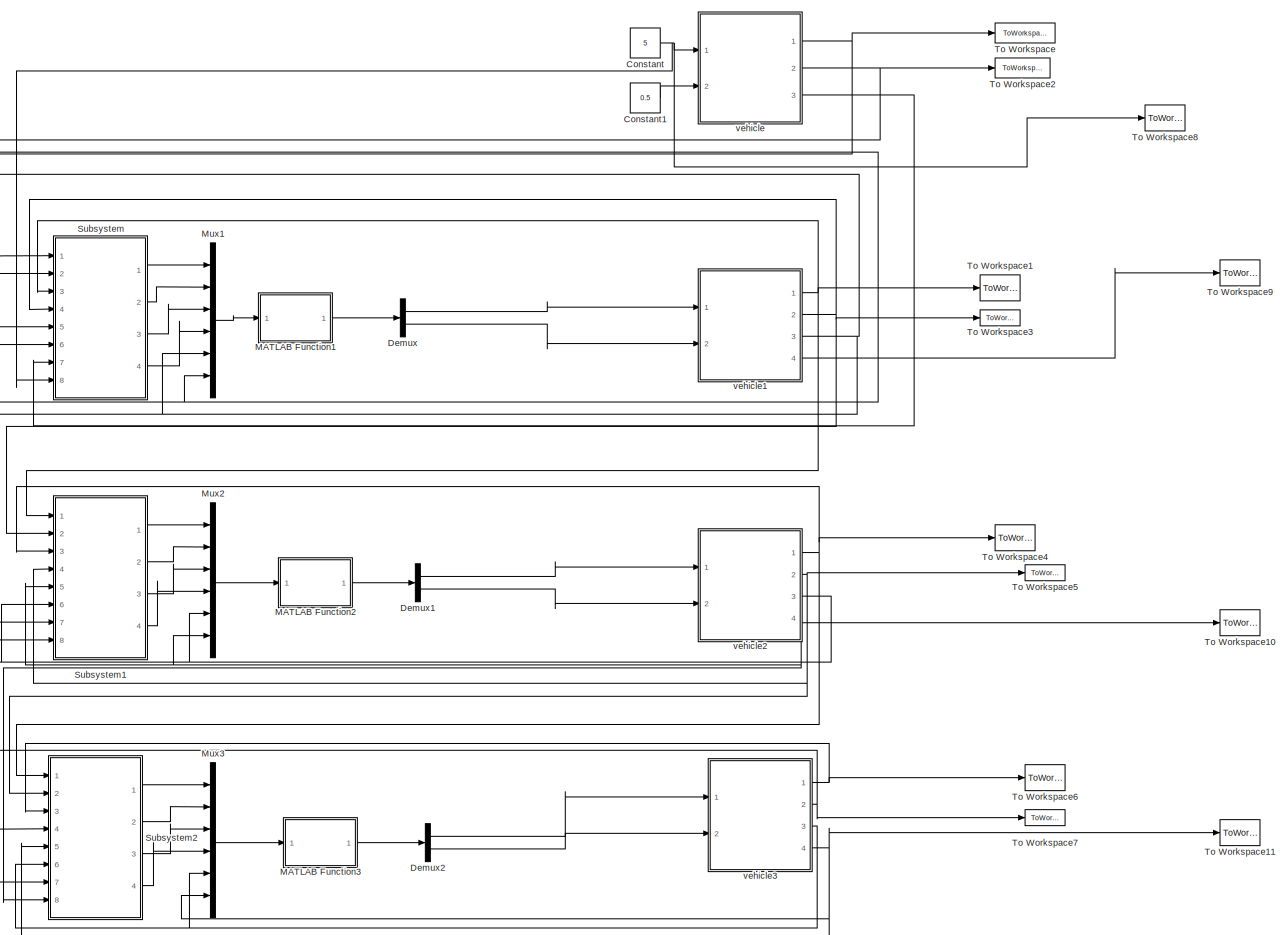
[diagram: root canvas - part 1/1, most of the canvas]
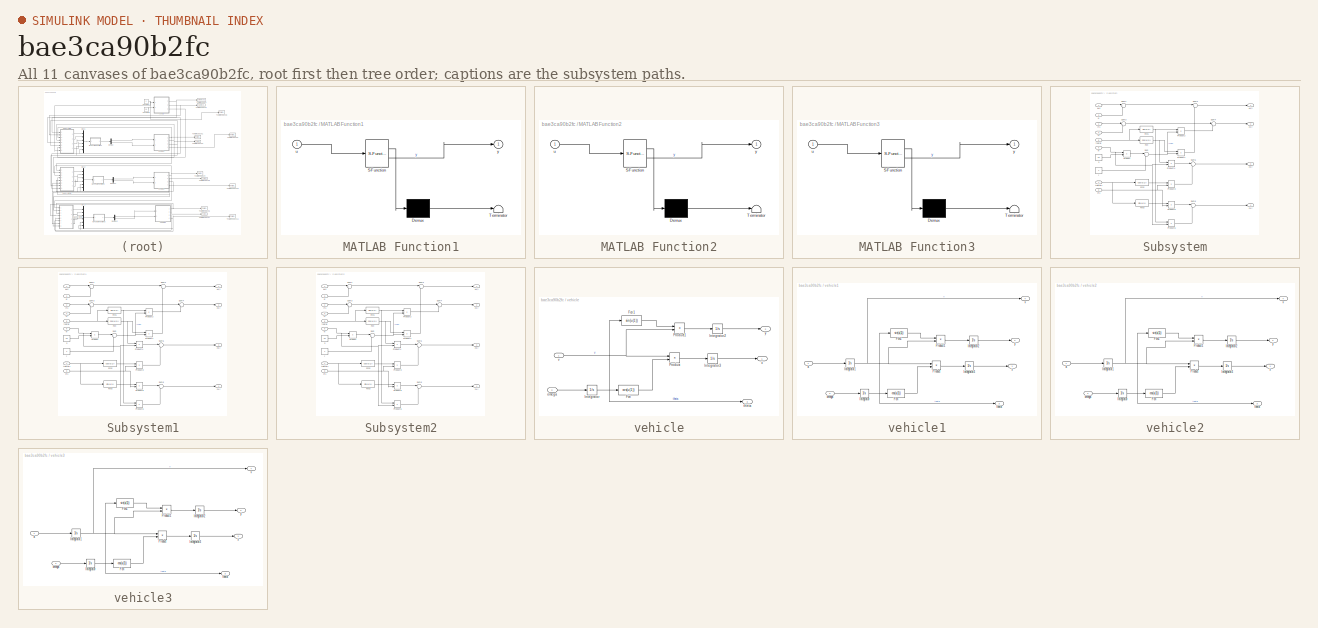
[diagram: thumbnail index - all 11 canvases of the model, root first then tree order]
MODEL slx_bae3ca90b2fc
KIND model
CONFIG AbsTol = auto
CONFIG EnableMultiTasking = off
CONFIG FixedStep = 0.01
CONFIG MaxStep = auto
CONFIG MinStep = auto
CONFIG RelTol = 1e-3
CONFIG SampleTimeConstraint = Unconstrained
CONFIG SolverName = FixedStepAuto
CONFIG StartTime = 0.0
CONFIG StopTime = 18
BLOCK [Constant] Constant
  Value = 5
BLOCK [Constant] Constant1
  Value = 0.5
BLOCK [Demux] Demux
  Outputs = 2
  Ports = [1, 2]
BLOCK [Demux] Demux1
  Outputs = 2
  Ports = [1, 2]
BLOCK [Demux] Demux2
  Outputs = 2
  Ports = [1, 2]
BLOCK [SubSystem] MATLAB Function1
  ErrorFcn = Stateflow.Translate.translate
  PermitHierarchicalResolution = ExplicitOnly
  Ports = [1, 1]
  RequestExecContextInheritance = off
  SFBlockType = MATLAB Function
  TreatAsAtomicUnit = on
BLOCK [Demux] MATLAB Function1/ Demux 
  Outputs = 1
  Ports = [1, 1]
BLOCK [S-Function] MATLAB Function1/ SFunction 
  EnableBusSupport = on
  FunctionName = sf_sfun
  PortCounts = [1 2]
  Ports = [1, 2]
  SFcnIsStateOwnerBlock = off
  SFunctionDeploymentMode = off
  Tag = Stateflow S-Function 1
BLOCK [Terminator] MATLAB Function1/ Terminator 
BLOCK [Inport] MATLAB Function1/u
BLOCK [Outport] MATLAB Function1/y
BLOCK [SubSystem] MATLAB Function2
  ErrorFcn = Stateflow.Translate.translate
  PermitHierarchicalResolution = ExplicitOnly
  Ports = [1, 1]
  RequestExecContextInheritance = off
  SFBlockType = MATLAB Function
  TreatAsAtomicUnit = on
BLOCK [Demux] MATLAB Function2/ Demux 
  Outputs = 1
  Ports = [1, 1]
BLOCK [S-Function] MATLAB Function2/ SFunction 
  EnableBusSupport = on
  FunctionName = sf_sfun
  PortCounts = [1 2]
  Ports = [1, 2]
  SFcnIsStateOwnerBlock = off
  SFunctionDeploymentMode = off
  Tag = Stateflow S-Function 2
BLOCK [Terminator] MATLAB Function2/ Terminator 
BLOCK [Inport] MATLAB Function2/u
BLOCK [Outport] MATLAB Function2/y
BLOCK [SubSystem] MATLAB Function3
  ErrorFcn = Stateflow.Translate.translate
  PermitHierarchicalResolution = ExplicitOnly
  Ports = [1, 1]
  RequestExecContextInheritance = off
  SFBlockType = MATLAB Function
  TreatAsAtomicUnit = on
BLOCK [Demux] MATLAB Function3/ Demux 
  Outputs = 1
  Ports = [1, 1]
BLOCK [S-Function] MATLAB Function3/ SFunction 
  EnableBusSupport = on
  FunctionName = sf_sfun
  PortCounts = [1 2]
  Ports = [1, 2]
  SFcnIsStateOwnerBlock = off
  SFunctionDeploymentMode = off
  Tag = Stateflow S-Function 3
BLOCK [Terminator] MATLAB Function3/ Terminator 
BLOCK [Inport] MATLAB Function3/u
BLOCK [Outport] MATLAB Function3/y
BLOCK [Mux] Mux1
  DisplayOption = bar
  Inputs = 6
  Ports = [6, 1]
BLOCK [Mux] Mux2
  DisplayOption = bar
  Inputs = 6
  Ports = [6, 1]
BLOCK [Mux] Mux3
  DisplayOption = bar
  Inputs = 6
  Ports = [6, 1]
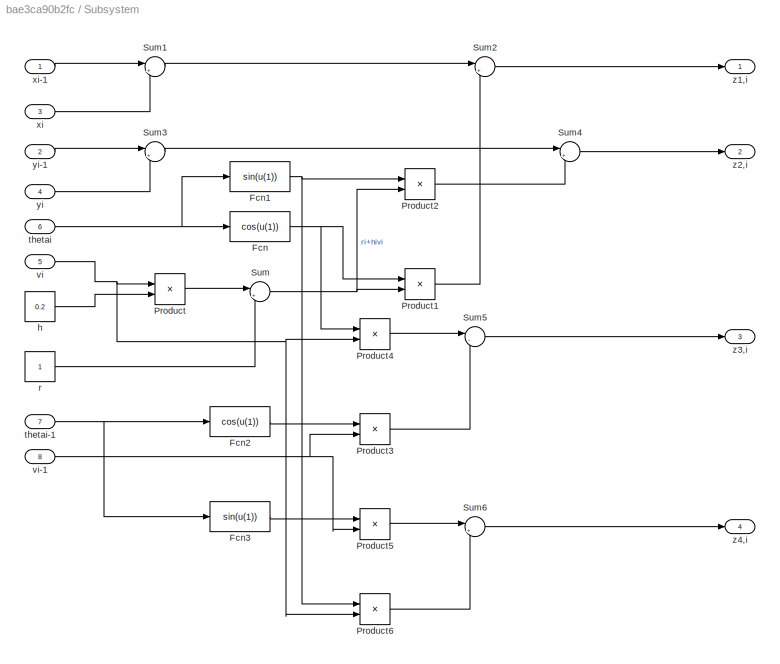
BLOCK [SubSystem] Subsystem
  Ports = [8, 4]
  RequestExecContextInheritance = off
BLOCK [Fcn] Subsystem/Fcn
  Expr = cos(u(1))
BLOCK [Fcn] Subsystem/Fcn1
  Expr = sin(u(1))
BLOCK [Fcn] Subsystem/Fcn2
  Expr = cos(u(1))
BLOCK [Fcn] Subsystem/Fcn3
  Expr = sin(u(1))
BLOCK [Product] Subsystem/Product
  Ports = [2, 1]
BLOCK [Product] Subsystem/Product1
  Ports = [2, 1]
BLOCK [Product] Subsystem/Product2
  Ports = [2, 1]
BLOCK [Product] Subsystem/Product3
  Ports = [2, 1]
BLOCK [Product] Subsystem/Product4
  Ports = [2, 1]
BLOCK [Product] Subsystem/Product5
  Ports = [2, 1]
BLOCK [Product] Subsystem/Product6
  Ports = [2, 1]
BLOCK [Sum] Subsystem/Sum
  Inputs = |++
  Ports = [2, 1]
BLOCK [Sum] Subsystem/Sum1
  Inputs = |+-
  Ports = [2, 1]
BLOCK [Sum] Subsystem/Sum2
  Inputs = |+-
  Ports = [2, 1]
BLOCK [Sum] Subsystem/Sum3
  Inputs = |+-
  Ports = [2, 1]
BLOCK [Sum] Subsystem/Sum4
  Inputs = |+-
  Ports = [2, 1]
BLOCK [Sum] Subsystem/Sum5
  Inputs = |-+
  Ports = [2, 1]
BLOCK [Sum] Subsystem/Sum6
  Inputs = |+-
  Ports = [2, 1]
BLOCK [Constant] Subsystem/h
  Value = 0.2
BLOCK [Constant] Subsystem/r
BLOCK [Inport] Subsystem/thetai
  Port = 6
BLOCK [Inport] Subsystem/thetai-1
  Port = 7
BLOCK [Inport] Subsystem/vi
  Port = 5
BLOCK [Inport] Subsystem/vi-1
  Port = 8
BLOCK [Inport] Subsystem/xi
  Port = 3
BLOCK [Inport] Subsystem/xi-1
BLOCK [Inport] Subsystem/yi
  Port = 4
BLOCK [Inport] Subsystem/yi-1
  Port = 2
BLOCK [Outport] Subsystem/z1,i
BLOCK [Outport] Subsystem/z2,i
  Port = 2
BLOCK [Outport] Subsystem/z3,i
  Port = 3
BLOCK [Outport] Subsystem/z4,i
  Port = 4
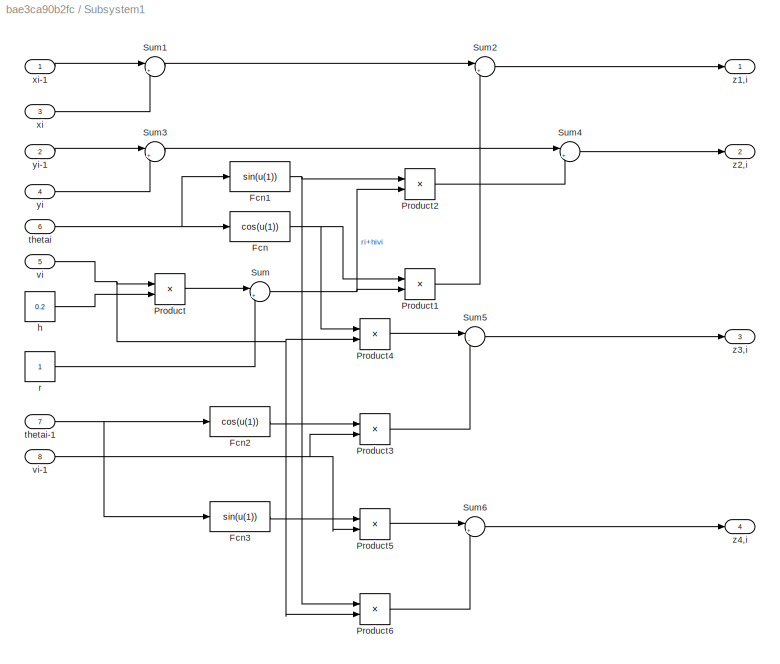
BLOCK [SubSystem] Subsystem1
  Ports = [8, 4]
  RequestExecContextInheritance = off
BLOCK [Fcn] Subsystem1/Fcn
  Expr = cos(u(1))
BLOCK [Fcn] Subsystem1/Fcn1
  Expr = sin(u(1))
BLOCK [Fcn] Subsystem1/Fcn2
  Expr = cos(u(1))
BLOCK [Fcn] Subsystem1/Fcn3
  Expr = sin(u(1))
BLOCK [Product] Subsystem1/Product
  Ports = [2, 1]
BLOCK [Product] Subsystem1/Product1
  Ports = [2, 1]
BLOCK [Product] Subsystem1/Product2
  Ports = [2, 1]
BLOCK [Product] Subsystem1/Product3
  Ports = [2, 1]
BLOCK [Product] Subsystem1/Product4
  Ports = [2, 1]
BLOCK [Product] Subsystem1/Product5
  Ports = [2, 1]
BLOCK [Product] Subsystem1/Product6
  Ports = [2, 1]
BLOCK [Sum] Subsystem1/Sum
  Inputs = |++
  Ports = [2, 1]
BLOCK [Sum] Subsystem1/Sum1
  Inputs = |+-
  Ports = [2, 1]
BLOCK [Sum] Subsystem1/Sum2
  Inputs = |+-
  Ports = [2, 1]
BLOCK [Sum] Subsystem1/Sum3
  Inputs = |+-
  Ports = [2, 1]
BLOCK [Sum] Subsystem1/Sum4
  Inputs = |+-
  Ports = [2, 1]
BLOCK [Sum] Subsystem1/Sum5
  Inputs = |-+
  Ports = [2, 1]
BLOCK [Sum] Subsystem1/Sum6
  Inputs = |+-
  Ports = [2, 1]
BLOCK [Constant] Subsystem1/h
  Value = 0.2
BLOCK [Constant] Subsystem1/r
BLOCK [Inport] Subsystem1/thetai
  Port = 6
BLOCK [Inport] Subsystem1/thetai-1
  Port = 7
BLOCK [Inport] Subsystem1/vi
  Port = 5
BLOCK [Inport] Subsystem1/vi-1
  Port = 8
BLOCK [Inport] Subsystem1/xi
  Port = 3
BLOCK [Inport] Subsystem1/xi-1
BLOCK [Inport] Subsystem1/yi
  Port = 4
BLOCK [Inport] Subsystem1/yi-1
  Port = 2
BLOCK [Outport] Subsystem1/z1,i
BLOCK [Outport] Subsystem1/z2,i
  Port = 2
BLOCK [Outport] Subsystem1/z3,i
  Port = 3
BLOCK [Outport] Subsystem1/z4,i
  Port = 4
BLOCK [SubSystem] Subsystem2
  Ports = [8, 4]
  RequestExecContextInheritance = off
BLOCK [Fcn] Subsystem2/Fcn
  Expr = cos(u(1))
BLOCK [Fcn] Subsystem2/Fcn1
  Expr = sin(u(1))
BLOCK [Fcn] Subsystem2/Fcn2
  Expr = cos(u(1))
BLOCK [Fcn] Subsystem2/Fcn3
  Expr = sin(u(1))
BLOCK [Product] Subsystem2/Product
  Ports = [2, 1]
BLOCK [Product] Subsystem2/Product1
  Ports = [2, 1]
BLOCK [Product] Subsystem2/Product2
  Ports = [2, 1]
BLOCK [Product] Subsystem2/Product3
  Ports = [2, 1]
BLOCK [Product] Subsystem2/Product4
  Ports = [2, 1]
BLOCK [Product] Subsystem2/Product5
  Ports = [2, 1]
BLOCK [Product] Subsystem2/Product6
  Ports = [2, 1]
BLOCK [Sum] Subsystem2/Sum
  Inputs = |++
  Ports = [2, 1]
BLOCK [Sum] Subsystem2/Sum1
  Inputs = |+-
  Ports = [2, 1]
BLOCK [Sum] Subsystem2/Sum2
  Inputs = |+-
  Ports = [2, 1]
BLOCK [Sum] Subsystem2/Sum3
  Inputs = |+-
  Ports = [2, 1]
BLOCK [Sum] Subsystem2/Sum4
  Inputs = |+-
  Ports = [2, 1]
BLOCK [Sum] Subsystem2/Sum5
  Inputs = |-+
  Ports = [2, 1]
BLOCK [Sum] Subsystem2/Sum6
  Inputs = |+-
  Ports = [2, 1]
BLOCK [Constant] Subsystem2/h
  Value = 0.2
BLOCK [Constant] Subsystem2/r
BLOCK [Inport] Subsystem2/thetai
  Port = 6
BLOCK [Inport] Subsystem2/thetai-1
  Port = 7
BLOCK [Inport] Subsystem2/vi
  Port = 5
BLOCK [Inport] Subsystem2/vi-1
  Port = 8
BLOCK [Inport] Subsystem2/xi
  Port = 3
BLOCK [Inport] Subsystem2/xi-1
BLOCK [Inport] Subsystem2/yi
  Port = 4
BLOCK [Inport] Subsystem2/yi-1
  Port = 2
BLOCK [Outport] Subsystem2/z1,i
BLOCK [Outport] Subsystem2/z2,i
  Port = 2
BLOCK [Outport] Subsystem2/z3,i
  Port = 3
BLOCK [Outport] Subsystem2/z4,i
  Port = 4
BLOCK [ToWorkspace] To Workspace
  FixptAsFi = on
  MaxDataPoints = inf
  Ports = [1]
  SampleTime = -1
  Save2DSignal = 2-D array (concatenate along first dimension)
  VariableName = x1
BLOCK [ToWorkspace] To Workspace1
  FixptAsFi = on
  MaxDataPoints = inf
  Ports = [1]
  SampleTime = -1
  Save2DSignal = 2-D array (concatenate along first dimension)
  VariableName = x2
BLOCK [ToWorkspace] To Workspace10
  FixptAsFi = on
  MaxDataPoints = inf
  Ports = [1]
  SampleTime = -1
  Save2DSignal = 2-D array (concatenate along first dimension)
  SaveFormat = Timeseries
  VariableName = v3
BLOCK [ToWorkspace] To Workspace11
  FixptAsFi = on
  MaxDataPoints = inf
  Ports = [1]
  SampleTime = -1
  Save2DSignal = 2-D array (concatenate along first dimension)
  SaveFormat = Timeseries
  VariableName = v4
BLOCK [ToWorkspace] To Workspace2
  FixptAsFi = on
  MaxDataPoints = inf
  Ports = [1]
  SampleTime = -1
  Save2DSignal = 2-D array (concatenate along first dimension)
  VariableName = y1
BLOCK [ToWorkspace] To Workspace3
  FixptAsFi = on
  MaxDataPoints = inf
  Ports = [1]
  SampleTime = -1
  Save2DSignal = 2-D array (concatenate along first dimension)
  VariableName = y2
BLOCK [ToWorkspace] To Workspace4
  FixptAsFi = on
  MaxDataPoints = inf
  Ports = [1]
  SampleTime = -1
  Save2DSignal = 2-D array (concatenate along first dimension)
  VariableName = x3
BLOCK [ToWorkspace] To Workspace5
  FixptAsFi = on
  MaxDataPoints = inf
  Ports = [1]
  SampleTime = -1
  Save2DSignal = 2-D array (concatenate along first dimension)
  VariableName = y3
BLOCK [ToWorkspace] To Workspace6
  FixptAsFi = on
  MaxDataPoints = inf
  Ports = [1]
  SampleTime = -1
  Save2DSignal = 2-D array (concatenate along first dimension)
  VariableName = x4
BLOCK [ToWorkspace] To Workspace7
  FixptAsFi = on
  MaxDataPoints = inf
  Ports = [1]
  SampleTime = -1
  Save2DSignal = 2-D array (concatenate along first dimension)
  VariableName = y4
BLOCK [ToWorkspace] To Workspace8
  FixptAsFi = on
  MaxDataPoints = inf
  Ports = [1]
  SampleTime = -1
  Save2DSignal = 2-D array (concatenate along first dimension)
  SaveFormat = Timeseries
  VariableName = v1
BLOCK [ToWorkspace] To Workspace9
  FixptAsFi = on
  MaxDataPoints = inf
  Ports = [1]
  SampleTime = -1
  Save2DSignal = 2-D array (concatenate along first dimension)
  SaveFormat = Timeseries
  VariableName = v2
BLOCK [SubSystem] vehicle
  Ports = [2, 3]
  RequestExecContextInheritance = off
BLOCK [Fcn] vehicle/Fcn
  Expr = cos(u(1))
BLOCK [Fcn] vehicle/Fcn1
  Expr = sin(u(1))
BLOCK [Integrator] vehicle/Integrator
  Ports = [1, 1]
BLOCK [Integrator] vehicle/Integrator2
  Ports = [1, 1]
BLOCK [Integrator] vehicle/Integrator3
  Ports = [1, 1]
BLOCK [Product] vehicle/Product
  Ports = [2, 1]
BLOCK [Product] vehicle/Product1
  Ports = [2, 1]
BLOCK [Inport] vehicle/omega
  Port = 2
BLOCK [Outport] vehicle/theta
  Port = 3
BLOCK [Inport] vehicle/v
BLOCK [Outport] vehicle/x
BLOCK [Outport] vehicle/y
  Port = 2
BLOCK [SubSystem] vehicle1
  Ports = [2, 4]
  RequestExecContextInheritance = off
BLOCK [Fcn] vehicle1/Fcn
  Expr = cos(u(1))
BLOCK [Fcn] vehicle1/Fcn1
  Expr = sin(u(1))
BLOCK [Integrator] vehicle1/Integrator
  Ports = [1, 1]
BLOCK [Integrator] vehicle1/Integrator1
  InitialCondition = 5
  Ports = [1, 1]
BLOCK [Integrator] vehicle1/Integrator2
  InitialCondition = 2
  Ports = [1, 1]
BLOCK [Integrator] vehicle1/Integrator3
  InitialCondition = -2
  Ports = [1, 1]
BLOCK [Product] vehicle1/Product
  Ports = [2, 1]
BLOCK [Product] vehicle1/Product1
  Ports = [2, 1]
BLOCK [Inport] vehicle1/a
BLOCK [Inport] vehicle1/omega
  Port = 2
BLOCK [Outport] vehicle1/theta
  Port = 3
BLOCK [Outport] vehicle1/v
  Port = 4
BLOCK [Outport] vehicle1/x
BLOCK [Outport] vehicle1/y
  Port = 2
BLOCK [SubSystem] vehicle2
  Ports = [2, 4]
  RequestExecContextInheritance = off
BLOCK [Fcn] vehicle2/Fcn
  Expr = cos(u(1))
BLOCK [Fcn] vehicle2/Fcn1
  Expr = sin(u(1))
BLOCK [Integrator] vehicle2/Integrator
  Ports = [1, 1]
BLOCK [Integrator] vehicle2/Integrator1
  InitialCondition = 5
  Ports = [1, 1]
BLOCK [Integrator] vehicle2/Integrator2
  InitialCondition = 4
  Ports = [1, 1]
BLOCK [Integrator] vehicle2/Integrator3
  InitialCondition = -4
  Ports = [1, 1]
BLOCK [Product] vehicle2/Product
  Ports = [2, 1]
BLOCK [Product] vehicle2/Product1
  Ports = [2, 1]
BLOCK [Inport] vehicle2/a
BLOCK [Inport] vehicle2/omega
  Port = 2
BLOCK [Outport] vehicle2/theta
  Port = 3
BLOCK [Outport] vehicle2/v
  Port = 4
BLOCK [Outport] vehicle2/x
BLOCK [Outport] vehicle2/y
  Port = 2
BLOCK [SubSystem] vehicle3
  Ports = [2, 4]
  RequestExecContextInheritance = off
BLOCK [Fcn] vehicle3/Fcn
  Expr = cos(u(1))
BLOCK [Fcn] vehicle3/Fcn1
  Expr = sin(u(1))
BLOCK [Integrator] vehicle3/Integrator
  Ports = [1, 1]
BLOCK [Integrator] vehicle3/Integrator1
  InitialCondition = 5
  Ports = [1, 1]
BLOCK [Integrator] vehicle3/Integrator2
  InitialCondition = 6
  Ports = [1, 1]
BLOCK [Integrator] vehicle3/Integrator3
  InitialCondition = -6
  Ports = [1, 1]
BLOCK [Product] vehicle3/Product
  Ports = [2, 1]
BLOCK [Product] vehicle3/Product1
  Ports = [2, 1]
BLOCK [Inport] vehicle3/a
BLOCK [Inport] vehicle3/omega
  Port = 2
BLOCK [Outport] vehicle3/theta
  Port = 3
BLOCK [Outport] vehicle3/v
  Port = 4
BLOCK [Outport] vehicle3/x
BLOCK [Outport] vehicle3/y
  Port = 2
LINE Constant1:1 -> vehicle:2
NET Constant:1 -> Subsystem:8, To Workspace8:1, vehicle:1
LINE Demux1:1 -> vehicle2:1
LINE Demux1:2 -> vehicle2:2
LINE Demux2:1 -> vehicle3:1
LINE Demux2:2 -> vehicle3:2
LINE Demux:1 -> vehicle1:1
LINE Demux:2 -> vehicle1:2
LINE MATLAB Function1:1 -> Demux:1
LINE MATLAB Function2:1 -> Demux1:1
LINE MATLAB Function3:1 -> Demux2:1
LINE Mux1:1 -> MATLAB Function1:1
LINE Mux2:1 -> MATLAB Function2:1
LINE Mux3:1 -> MATLAB Function3:1
NET Subsystem/Fcn1:1 -> Subsystem/Product2:1, Subsystem/Product6:1
LINE Subsystem/Fcn2:1 -> Subsystem/Product3:1
LINE Subsystem/Fcn3:1 -> Subsystem/Product5:1
NET Subsystem/Fcn:1 -> Subsystem/Product1:1, Subsystem/Product4:1
LINE Subsystem/Product1:1 -> Subsystem/Sum2:2
LINE Subsystem/Product2:1 -> Subsystem/Sum4:2
LINE Subsystem/Product3:1 -> Subsystem/Sum5:2
LINE Subsystem/Product4:1 -> Subsystem/Sum5:1
LINE Subsystem/Product5:1 -> Subsystem/Sum6:1
LINE Subsystem/Product6:1 -> Subsystem/Sum6:2
LINE Subsystem/Product:1 -> Subsystem/Sum:1
LINE Subsystem/Sum1:1 -> Subsystem/Sum2:1
LINE Subsystem/Sum2:1 -> Subsystem/z1,i:1
LINE Subsystem/Sum3:1 -> Subsystem/Sum4:1
LINE Subsystem/Sum4:1 -> Subsystem/z2,i:1
LINE Subsystem/Sum5:1 -> Subsystem/z3,i:1
LINE Subsystem/Sum6:1 -> Subsystem/z4,i:1
NET Subsystem/Sum:1 -> Subsystem/Product1:2, Subsystem/Product2:2
LINE Subsystem/h:1 -> Subsystem/Product:2
LINE Subsystem/r:1 -> Subsystem/Sum:2
NET Subsystem/thetai-1:1 -> Subsystem/Fcn2:1, Subsystem/Fcn3:1
NET Subsystem/thetai:1 -> Subsystem/Fcn1:1, Subsystem/Fcn:1
NET Subsystem/vi-1:1 -> Subsystem/Product3:2, Subsystem/Product5:2
NET Subsystem/vi:1 -> Subsystem/Product4:2, Subsystem/Product6:2, Subsystem/Product:1
LINE Subsystem/xi-1:1 -> Subsystem/Sum1:1
LINE Subsystem/xi:1 -> Subsystem/Sum1:2
LINE Subsystem/yi-1:1 -> Subsystem/Sum3:1
LINE Subsystem/yi:1 -> Subsystem/Sum3:2
NET Subsystem1/Fcn1:1 -> Subsystem1/Product2:1, Subsystem1/Product6:1
LINE Subsystem1/Fcn2:1 -> Subsystem1/Product3:1
LINE Subsystem1/Fcn3:1 -> Subsystem1/Product5:1
NET Subsystem1/Fcn:1 -> Subsystem1/Product1:1, Subsystem1/Product4:1
LINE Subsystem1/Product1:1 -> Subsystem1/Sum2:2
LINE Subsystem1/Product2:1 -> Subsystem1/Sum4:2
LINE Subsystem1/Product3:1 -> Subsystem1/Sum5:2
LINE Subsystem1/Product4:1 -> Subsystem1/Sum5:1
LINE Subsystem1/Product5:1 -> Subsystem1/Sum6:1
LINE Subsystem1/Product6:1 -> Subsystem1/Sum6:2
LINE Subsystem1/Product:1 -> Subsystem1/Sum:1
LINE Subsystem1/Sum1:1 -> Subsystem1/Sum2:1
LINE Subsystem1/Sum2:1 -> Subsystem1/z1,i:1
LINE Subsystem1/Sum3:1 -> Subsystem1/Sum4:1
LINE Subsystem1/Sum4:1 -> Subsystem1/z2,i:1
LINE Subsystem1/Sum5:1 -> Subsystem1/z3,i:1
LINE Subsystem1/Sum6:1 -> Subsystem1/z4,i:1
NET Subsystem1/Sum:1 -> Subsystem1/Product1:2, Subsystem1/Product2:2
LINE Subsystem1/h:1 -> Subsystem1/Product:2
LINE Subsystem1/r:1 -> Subsystem1/Sum:2
NET Subsystem1/thetai-1:1 -> Subsystem1/Fcn2:1, Subsystem1/Fcn3:1
NET Subsystem1/thetai:1 -> Subsystem1/Fcn1:1, Subsystem1/Fcn:1
NET Subsystem1/vi-1:1 -> Subsystem1/Product3:2, Subsystem1/Product5:2
NET Subsystem1/vi:1 -> Subsystem1/Product4:2, Subsystem1/Product6:2, Subsystem1/Product:1
LINE Subsystem1/xi-1:1 -> Subsystem1/Sum1:1
LINE Subsystem1/xi:1 -> Subsystem1/Sum1:2
LINE Subsystem1/yi-1:1 -> Subsystem1/Sum3:1
LINE Subsystem1/yi:1 -> Subsystem1/Sum3:2
LINE Subsystem1:1 -> Mux2:1
LINE Subsystem1:2 -> Mux2:2
LINE Subsystem1:3 -> Mux2:3
LINE Subsystem1:4 -> Mux2:4
NET Subsystem2/Fcn1:1 -> Subsystem2/Product2:1, Subsystem2/Product6:1
LINE Subsystem2/Fcn2:1 -> Subsystem2/Product3:1
LINE Subsystem2/Fcn3:1 -> Subsystem2/Product5:1
NET Subsystem2/Fcn:1 -> Subsystem2/Product1:1, Subsystem2/Product4:1
LINE Subsystem2/Product1:1 -> Subsystem2/Sum2:2
LINE Subsystem2/Product2:1 -> Subsystem2/Sum4:2
LINE Subsystem2/Product3:1 -> Subsystem2/Sum5:2
LINE Subsystem2/Product4:1 -> Subsystem2/Sum5:1
LINE Subsystem2/Product5:1 -> Subsystem2/Sum6:1
LINE Subsystem2/Product6:1 -> Subsystem2/Sum6:2
LINE Subsystem2/Product:1 -> Subsystem2/Sum:1
LINE Subsystem2/Sum1:1 -> Subsystem2/Sum2:1
LINE Subsystem2/Sum2:1 -> Subsystem2/z1,i:1
LINE Subsystem2/Sum3:1 -> Subsystem2/Sum4:1
LINE Subsystem2/Sum4:1 -> Subsystem2/z2,i:1
LINE Subsystem2/Sum5:1 -> Subsystem2/z3,i:1
LINE Subsystem2/Sum6:1 -> Subsystem2/z4,i:1
NET Subsystem2/Sum:1 -> Subsystem2/Product1:2, Subsystem2/Product2:2
LINE Subsystem2/h:1 -> Subsystem2/Product:2
LINE Subsystem2/r:1 -> Subsystem2/Sum:2
NET Subsystem2/thetai-1:1 -> Subsystem2/Fcn2:1, Subsystem2/Fcn3:1
NET Subsystem2/thetai:1 -> Subsystem2/Fcn1:1, Subsystem2/Fcn:1
NET Subsystem2/vi-1:1 -> Subsystem2/Product3:2, Subsystem2/Product5:2
NET Subsystem2/vi:1 -> Subsystem2/Product4:2, Subsystem2/Product6:2, Subsystem2/Product:1
LINE Subsystem2/xi-1:1 -> Subsystem2/Sum1:1
LINE Subsystem2/xi:1 -> Subsystem2/Sum1:2
LINE Subsystem2/yi-1:1 -> Subsystem2/Sum3:1
LINE Subsystem2/yi:1 -> Subsystem2/Sum3:2
LINE Subsystem2:1 -> Mux3:1
LINE Subsystem2:2 -> Mux3:2
LINE Subsystem2:3 -> Mux3:3
LINE Subsystem2:4 -> Mux3:4
LINE Subsystem:1 -> Mux1:1
LINE Subsystem:2 -> Mux1:2
LINE Subsystem:3 -> Mux1:3
LINE Subsystem:4 -> Mux1:4
LINE vehicle/Fcn1:1 -> vehicle/Product1:1
LINE vehicle/Fcn:1 -> vehicle/Product:2
LINE vehicle/Integrator2:1 -> vehicle/y:1
LINE vehicle/Integrator3:1 -> vehicle/x:1
NET vehicle/Integrator:1 -> vehicle/Fcn1:1, vehicle/Fcn:1, vehicle/theta:1
LINE vehicle/Product1:1 -> vehicle/Integrator2:1
LINE vehicle/Product:1 -> vehicle/Integrator3:1
LINE vehicle/omega:1 -> vehicle/Integrator:1
NET vehicle/v:1 -> vehicle/Product1:2, vehicle/Product:1
LINE vehicle1/Fcn1:1 -> vehicle1/Product1:1
LINE vehicle1/Fcn:1 -> vehicle1/Product:2
NET vehicle1/Integrator1:1 -> vehicle1/Product1:2, vehicle1/Product:1, vehicle1/v:1
LINE vehicle1/Integrator2:1 -> vehicle1/y:1
LINE vehicle1/Integrator3:1 -> vehicle1/x:1
NET vehicle1/Integrator:1 -> vehicle1/Fcn1:1, vehicle1/Fcn:1, vehicle1/theta:1
LINE vehicle1/Product1:1 -> vehicle1/Integrator2:1
LINE vehicle1/Product:1 -> vehicle1/Integrator3:1
LINE vehicle1/a:1 -> vehicle1/Integrator1:1
LINE vehicle1/omega:1 -> vehicle1/Integrator:1
NET vehicle1:1 -> Subsystem1:1, Subsystem:3, To Workspace1:1
NET vehicle1:2 -> Subsystem1:2, Subsystem:4, To Workspace3:1
NET vehicle1:3 -> Mux1:5, Subsystem1:7, Subsystem:6
NET vehicle1:4 -> Mux1:6, Subsystem1:8, Subsystem:5, To Workspace9:1
LINE vehicle2/Fcn1:1 -> vehicle2/Product1:1
LINE vehicle2/Fcn:1 -> vehicle2/Product:2
NET vehicle2/Integrator1:1 -> vehicle2/Product1:2, vehicle2/Product:1, vehicle2/v:1
LINE vehicle2/Integrator2:1 -> vehicle2/y:1
LINE vehicle2/Integrator3:1 -> vehicle2/x:1
NET vehicle2/Integrator:1 -> vehicle2/Fcn1:1, vehicle2/Fcn:1, vehicle2/theta:1
LINE vehicle2/Product1:1 -> vehicle2/Integrator2:1
LINE vehicle2/Product:1 -> vehicle2/Integrator3:1
LINE vehicle2/a:1 -> vehicle2/Integrator1:1
LINE vehicle2/omega:1 -> vehicle2/Integrator:1
NET vehicle2:1 -> Subsystem1:3, Subsystem2:1, To Workspace4:1
NET vehicle2:2 -> Subsystem1:4, Subsystem2:2, To Workspace5:1
NET vehicle2:3 -> Mux2:5, Subsystem1:6, Subsystem2:7
NET vehicle2:4 -> Mux2:6, Subsystem1:5, Subsystem2:8, To Workspace10:1
LINE vehicle3/Fcn1:1 -> vehicle3/Product1:1
LINE vehicle3/Fcn:1 -> vehicle3/Product:2
NET vehicle3/Integrator1:1 -> vehicle3/Product1:2, vehicle3/Product:1, vehicle3/v:1
LINE vehicle3/Integrator2:1 -> vehicle3/y:1
LINE vehicle3/Integrator3:1 -> vehicle3/x:1
NET vehicle3/Integrator:1 -> vehicle3/Fcn1:1, vehicle3/Fcn:1, vehicle3/theta:1
LINE vehicle3/Product1:1 -> vehicle3/Integrator2:1
LINE vehicle3/Product:1 -> vehicle3/Integrator3:1
LINE vehicle3/a:1 -> vehicle3/Integrator1:1
LINE vehicle3/omega:1 -> vehicle3/Integrator:1
NET vehicle3:1 -> Subsystem2:3, To Workspace6:1
NET vehicle3:2 -> Subsystem2:4, To Workspace7:1
NET vehicle3:3 -> Mux3:5, Subsystem2:6
NET vehicle3:4 -> Mux3:6, Subsystem2:5, To Workspace11:1
NET vehicle:1 -> Subsystem:1, To Workspace:1
NET vehicle:2 -> Subsystem:2, To Workspace2:1
LINE vehicle:3 -> Subsystem:7
note: NET lines group one-source signal fan-out (src -> all destinations, sorted); 1:1 wires keep LINE
CHART MATLAB Function2 states=1 transitions=1
  STATE_LABEL 'eML_blk_kernel()'
  STATE_LABEL 'SCRIPT:\nfunction y = fcn(u)\nz1_i=u(1);\nz2_i=u(2);\nz3_i=u(3);\nz4_i=u(4);\nthetai=u(5);\nvi=u(6);\n\nk1=3.5;\nk2=3.5;\nu1=z3_i+k1*z1_i;\nu2=z4_i+k2*z2_i;\nr=1;\nh=0.2;\n\nF11=h*cos(thetai);\nF12=-(r+h*vi)*sin(thetai);\nF21=h*sin(thetai);\nF22=(r+h*vi)*cos(thetai);\nF = [F11,F12;F21,F22];\n\nF_inv = F \\ eye(2);%计算F的逆矩阵\n\ny = F_inv*[u1;u2];\n\n'  <repeated x3 — deduplicated; at blocks: MATLAB Function2, MATLAB Function3, MATLAB Function1>
CHART MATLAB Function3 states=1 transitions=1
  STATE_LABEL 'eML_blk_kernel()'
CHART MATLAB Function1 states=1 transitions=1
  STATE_LABEL 'eML_blk_kernel()'
CHART  states=0 transitions=0
CHART  states=0 transitions=0
CHART  states=0 transitions=0
